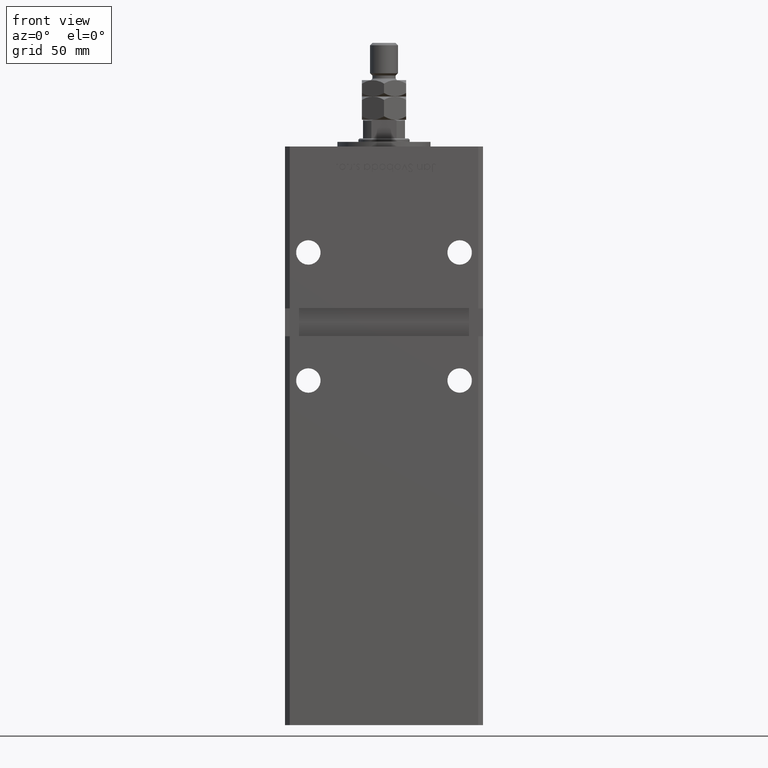
[diagram: clean part render]
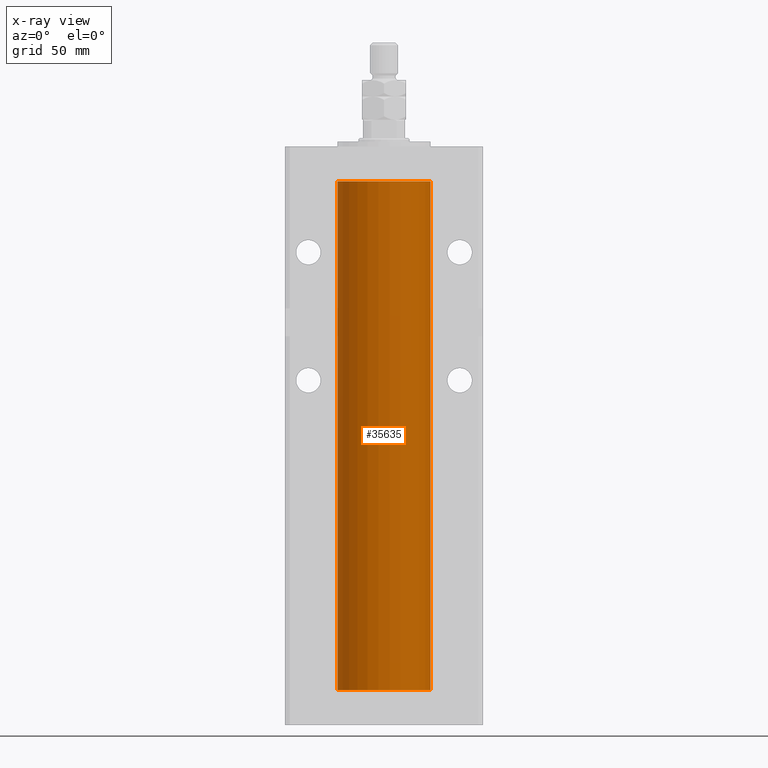
[diagram: x-ray — body ghosted, one internal face saturated and labeled with its STEP entity id]
A machine part, front view, then the same camera in x-ray: the body is ghosted and one INTERNAL B-rep face — a face not visible from any outside direction — is saturated and labeled: STEP entity #35635.
In plain terms, the highlighted cylindrical surface (partial cylindrical patch) has radius 20 mm, axis along (-0, -0, -1).
Its self-contained STEP definition (entity closure, byte-faithful):
#877 = CIRCLE ( 'NONE', #30044, 20.00000000000000000 ) ;
#5170 = LINE ( 'NONE', #51097, #52162 ) ;
#6405 = ORIENTED_EDGE ( 'NONE', *, *, #42632, .F. ) ;
#6746 = CARTESIAN_POINT ( 'NONE',  ( 20.00000000000000000, 2.449293598294706513E-15, 218.5000000000000000 ) ) ;
#6924 = VERTEX_POINT ( 'NONE', #6746 ) ;
#7588 = VERTEX_POINT ( 'NONE', #26741 ) ;
#15703 = CARTESIAN_POINT ( 'NONE',  ( 0.000000000000000000, 0.000000000000000000, 0.000000000000000000 ) ) ;
#16397 = CARTESIAN_POINT ( 'NONE',  ( 0.000000000000000000, 0.000000000000000000, 218.5000000000000000 ) ) ;
#18400 = AXIS2_PLACEMENT_3D ( 'NONE', #23076, #27220, #19195 ) ;
#19195 = DIRECTION ( 'NONE',  ( -1.000000000000000000, 0.000000000000000000, 0.000000000000000000 ) ) ;
#22048 = DIRECTION ( 'NONE',  ( -0.000000000000000000, -0.000000000000000000, -1.000000000000000000 ) ) ;
#23036 = ORIENTED_EDGE ( 'NONE', *, *, #52008, .T. ) ;
#23076 = CARTESIAN_POINT ( 'NONE',  ( 0.000000000000000000, 0.000000000000000000, 218.5000000000000000 ) ) ;
#23957 = CARTESIAN_POINT ( 'NONE',  ( 20.00000000000000000, 2.449293598294706513E-15, 218.5000000000000000 ) ) ;
#25312 = VERTEX_POINT ( 'NONE', #37036 ) ;
#26741 = CARTESIAN_POINT ( 'NONE',  ( -20.00000000000000000, 0.000000000000000000, 0.000000000000000000 ) ) ;
#27220 = DIRECTION ( 'NONE',  ( -0.000000000000000000, -0.000000000000000000, -1.000000000000000000 ) ) ;
#27997 = ORIENTED_EDGE ( 'NONE', *, *, #54335, .T. ) ;
#28922 = LINE ( 'NONE', #23957, #47063 ) ;
#30044 = AXIS2_PLACEMENT_3D ( 'NONE', #15703, #45043, #32026 ) ;
#32026 = DIRECTION ( 'NONE',  ( 1.000000000000000000, 0.000000000000000000, 0.000000000000000000 ) ) ;
#33258 = DIRECTION ( 'NONE',  ( 1.000000000000000000, 0.000000000000000000, 0.000000000000000000 ) ) ;
#33849 = AXIS2_PLACEMENT_3D ( 'NONE', #16397, #37138, #33258 ) ;
#33866 = CARTESIAN_POINT ( 'NONE',  ( 20.00000000000000000, 2.449293598294706513E-15, 0.000000000000000000 ) ) ;
#35635 = ADVANCED_FACE ( 'NONE', ( #36600 ), #40199, .F. ) ;
#36600 = FACE_OUTER_BOUND ( 'NONE', #48710, .T. ) ;
#37036 = CARTESIAN_POINT ( 'NONE',  ( -20.00000000000000000, 0.000000000000000000, 218.5000000000000000 ) ) ;
#37138 = DIRECTION ( 'NONE',  ( -0.000000000000000000, 0.000000000000000000, 1.000000000000000000 ) ) ;
#40199 = CYLINDRICAL_SURFACE ( 'NONE', #18400, 20.00000000000000000 ) ;
#41125 = EDGE_CURVE ( 'NONE', #7588, #52088, #877, .T. ) ;
#42632 = EDGE_CURVE ( 'NONE', #25312, #7588, #5170, .T. ) ;
#45043 = DIRECTION ( 'NONE',  ( -0.000000000000000000, 0.000000000000000000, 1.000000000000000000 ) ) ;
#45812 = DIRECTION ( 'NONE',  ( -0.000000000000000000, -0.000000000000000000, -1.000000000000000000 ) ) ;
#46544 = ORIENTED_EDGE ( 'NONE', *, *, #41125, .F. ) ;
#47063 = VECTOR ( 'NONE', #45812, 1000.000000000000000 ) ;
#48710 = EDGE_LOOP ( 'NONE', ( #27997, #23036, #46544, #6405 ) ) ;
#48900 = CIRCLE ( 'NONE', #33849, 20.00000000000000000 ) ;
#51097 = CARTESIAN_POINT ( 'NONE',  ( -20.00000000000000000, 0.000000000000000000, 218.5000000000000000 ) ) ;
#52008 = EDGE_CURVE ( 'NONE', #6924, #52088, #28922, .T. ) ;
#52088 = VERTEX_POINT ( 'NONE', #33866 ) ;
#52162 = VECTOR ( 'NONE', #22048, 1000.000000000000000 ) ;
#54335 = EDGE_CURVE ( 'NONE', #25312, #6924, #48900, .T. ) ;